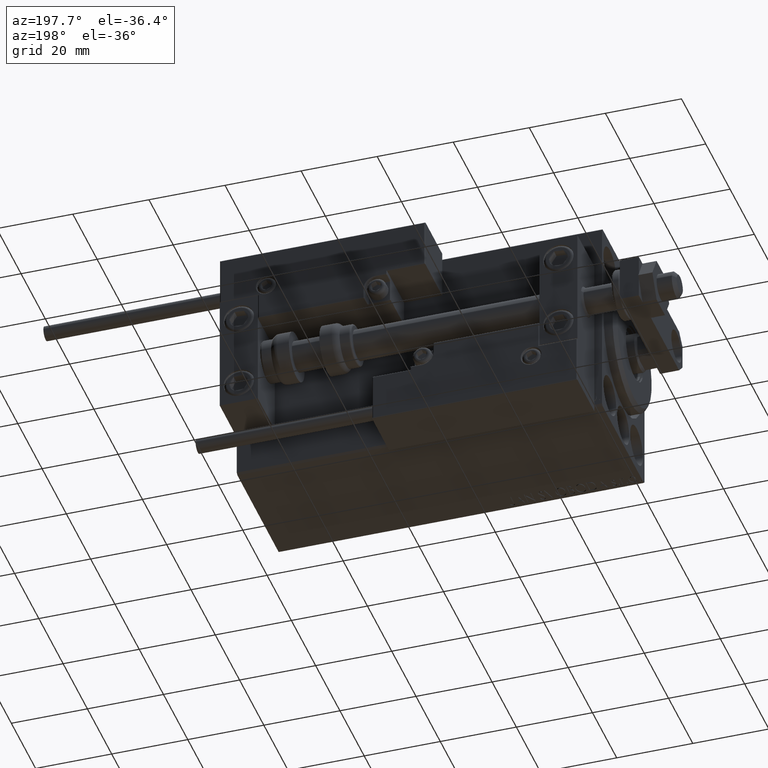
[diagram: clean part render]
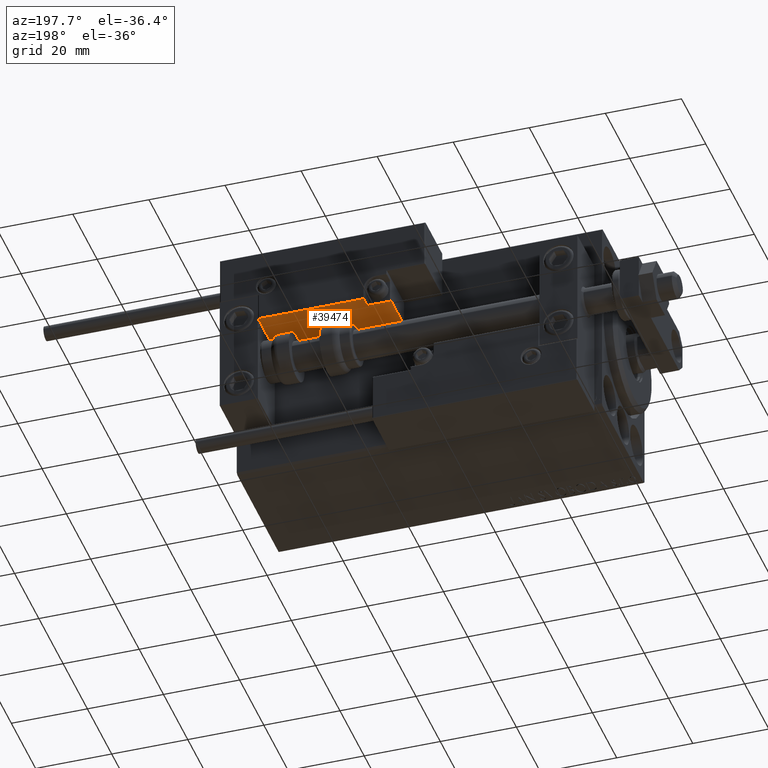
[diagram: same view with one face highlighted and labeled with its STEP entity id]
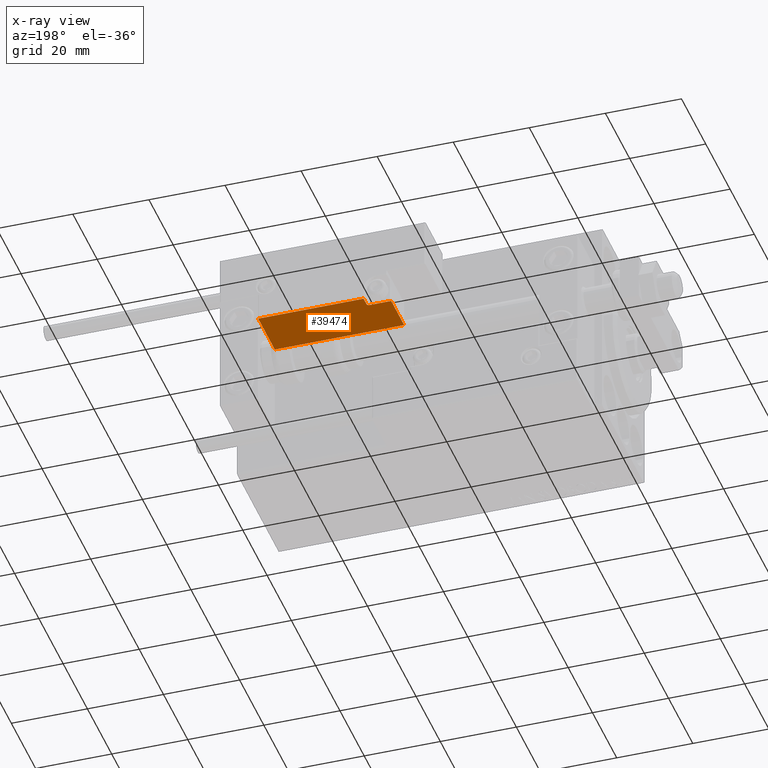
[diagram: x-ray of the same camera — body ghosted, the highlighted face saturated]
A machine part, auxiliary view. The second image highlights one B-rep face of the part: STEP entity #39474.
The next image is the same camera in x-ray: the body ghosted, the highlighted face saturated — about 0% of this face is hidden behind the body in this view.
In plain terms, the highlighted planar face has unit normal (0, 0, 1).
Its self-contained STEP definition (entity closure, byte-faithful):
#764 = VECTOR ( 'NONE', #43086, 1000.000000000000000 ) ;
#1596 = CARTESIAN_POINT ( 'NONE',  ( 10.70000000000000107, 3.252606517456513302E-15, 13.70000000000000107 ) ) ;
#4513 = CARTESIAN_POINT ( 'NONE',  ( 10.70000000000000107, 3.252606517456513302E-15, 11.29999999999999893 ) ) ;
#4519 = CARTESIAN_POINT ( 'NONE',  ( -16.99999999999999289, 3.252606517456513302E-15, 0.000000000000000000 ) ) ;
#4529 = EDGE_CURVE ( 'NONE', #23214, #22871, #26317, .T. ) ;
#4815 = LINE ( 'NONE', #35977, #764 ) ;
#4894 = VECTOR ( 'NONE', #17628, 1000.000000000000000 ) ;
#6135 = ORIENTED_EDGE ( 'NONE', *, *, #12185, .F. ) ;
#6605 = CARTESIAN_POINT ( 'NONE',  ( 10.70000000000000107, 3.252606517456513302E-15, 14.00000000000000000 ) ) ;
#7152 = VECTOR ( 'NONE', #28976, 1000.000000000000000 ) ;
#8698 = ORIENTED_EDGE ( 'NONE', *, *, #49351, .T. ) ;
#8897 = ORIENTED_EDGE ( 'NONE', *, *, #32373, .T. ) ;
#9270 = CARTESIAN_POINT ( 'NONE',  ( -16.99999999999999289, 3.252606517456513302E-15, 0.000000000000000000 ) ) ;
#9649 = VERTEX_POINT ( 'NONE', #21971 ) ;
#9902 = DIRECTION ( 'NONE',  ( -1.000000000000000000, 0.000000000000000000, -0.000000000000000000 ) ) ;
#11333 = EDGE_CURVE ( 'NONE', #9649, #22871, #13958, .T. ) ;
#11659 = ORIENTED_EDGE ( 'NONE', *, *, #11333, .T. ) ;
#12185 = EDGE_CURVE ( 'NONE', #9649, #43279, #47501, .T. ) ;
#12375 = DIRECTION ( 'NONE',  ( -1.000000000000000000, 0.000000000000000000, -0.000000000000000000 ) ) ;
#13958 = LINE ( 'NONE', #21070, #23303 ) ;
#16114 = DIRECTION ( 'NONE',  ( 0.000000000000000000, 0.000000000000000000, 1.000000000000000000 ) ) ;
#16194 = LINE ( 'NONE', #31646, #45258 ) ;
#17628 = DIRECTION ( 'NONE',  ( 1.000000000000000000, 0.000000000000000000, 0.000000000000000000 ) ) ;
#21070 = CARTESIAN_POINT ( 'NONE',  ( 11.00000000000000000, 3.252606517456513302E-15, 10.69999999999999929 ) ) ;
#21971 = CARTESIAN_POINT ( 'NONE',  ( 16.99999999999999289, 3.252606517456513302E-15, 10.69999999999999929 ) ) ;
#22083 = DIRECTION ( 'NONE',  ( 0.000000000000000000, -0.000000000000000000, 1.000000000000000000 ) ) ;
#22871 = VERTEX_POINT ( 'NONE', #33721 ) ;
#23214 = VERTEX_POINT ( 'NONE', #4513 ) ;
#23303 = VECTOR ( 'NONE', #9902, 1000.000000000000000 ) ;
#23368 = ORIENTED_EDGE ( 'NONE', *, *, #32111, .T. ) ;
#23562 = CARTESIAN_POINT ( 'NONE',  ( -16.99999999999999289, 3.252606517456513302E-15, 14.00000000000000000 ) ) ;
#23978 = VERTEX_POINT ( 'NONE', #1596 ) ;
#26317 = CIRCLE ( 'NONE', #32789, 0.5999999999999998668 ) ;
#26619 = DIRECTION ( 'NONE',  ( 0.000000000000000000, -0.000000000000000000, 1.000000000000000000 ) ) ;
#28976 = DIRECTION ( 'NONE',  ( -0.000000000000000000, -0.000000000000000000, -1.000000000000000000 ) ) ;
#29325 = AXIS2_PLACEMENT_3D ( 'NONE', #23562, #31665, #26619 ) ;
#31308 = CARTESIAN_POINT ( 'NONE',  ( 11.29999999999999893, 3.252606517456513302E-15, 11.29999999999999893 ) ) ;
#31646 = CARTESIAN_POINT ( 'NONE',  ( -16.99999999999999289, 3.252606517456513302E-15, 13.70000000000000107 ) ) ;
#31665 = DIRECTION ( 'NONE',  ( 0.000000000000000000, 1.000000000000000000, 0.000000000000000000 ) ) ;
#32111 = EDGE_CURVE ( 'NONE', #23214, #23978, #41329, .T. ) ;
#32373 = EDGE_CURVE ( 'NONE', #47755, #37684, #4815, .T. ) ;
#32789 = AXIS2_PLACEMENT_3D ( 'NONE', #31308, #35109, #16114 ) ;
#32832 = LINE ( 'NONE', #9270, #4894 ) ;
#33721 = CARTESIAN_POINT ( 'NONE',  ( 11.29999999999999893, 3.252606517456513302E-15, 10.69999999999999929 ) ) ;
#33753 = EDGE_LOOP ( 'NONE', ( #6135, #11659, #42301, #23368, #8698, #8897, #38054 ) ) ;
#35109 = DIRECTION ( 'NONE',  ( -0.000000000000000000, -1.000000000000000000, -0.000000000000000000 ) ) ;
#35205 = PLANE ( 'NONE',  #29325 ) ;
#35977 = CARTESIAN_POINT ( 'NONE',  ( -16.99999999999999289, 3.252606517456513302E-15, 14.00000000000000000 ) ) ;
#37684 = VERTEX_POINT ( 'NONE', #4519 ) ;
#38054 = ORIENTED_EDGE ( 'NONE', *, *, #49756, .T. ) ;
#39015 = FACE_OUTER_BOUND ( 'NONE', #33753, .T. ) ;
#39474 = ADVANCED_FACE ( 'NONE', ( #39015 ), #35205, .F. ) ;
#40434 = VECTOR ( 'NONE', #22083, 1000.000000000000000 ) ;
#41329 = LINE ( 'NONE', #6605, #40434 ) ;
#42301 = ORIENTED_EDGE ( 'NONE', *, *, #4529, .F. ) ;
#42442 = CARTESIAN_POINT ( 'NONE',  ( -16.99999999999999289, 3.252606517456513302E-15, 13.70000000000000107 ) ) ;
#42687 = CARTESIAN_POINT ( 'NONE',  ( 16.99999999999999289, 3.252606517456513302E-15, 0.000000000000000000 ) ) ;
#43086 = DIRECTION ( 'NONE',  ( -0.000000000000000000, -0.000000000000000000, -1.000000000000000000 ) ) ;
#43279 = VERTEX_POINT ( 'NONE', #42687 ) ;
#44928 = CARTESIAN_POINT ( 'NONE',  ( 16.99999999999999289, 3.252606517456513302E-15, 14.00000000000000000 ) ) ;
#45258 = VECTOR ( 'NONE', #12375, 1000.000000000000000 ) ;
#47501 = LINE ( 'NONE', #44928, #7152 ) ;
#47755 = VERTEX_POINT ( 'NONE', #42442 ) ;
#49351 = EDGE_CURVE ( 'NONE', #23978, #47755, #16194, .T. ) ;
#49756 = EDGE_CURVE ( 'NONE', #37684, #43279, #32832, .T. ) ;